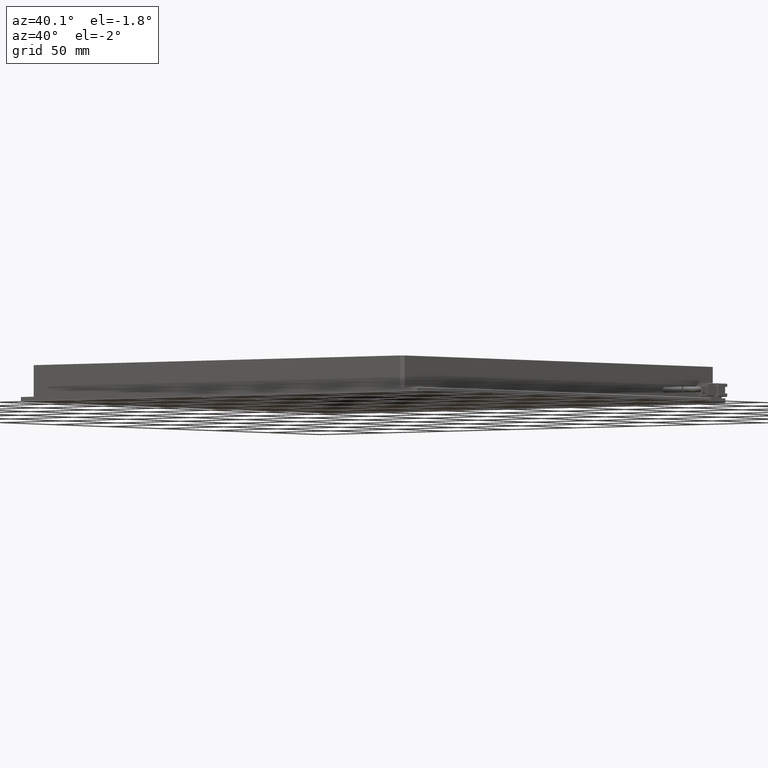
[diagram: clean part render]
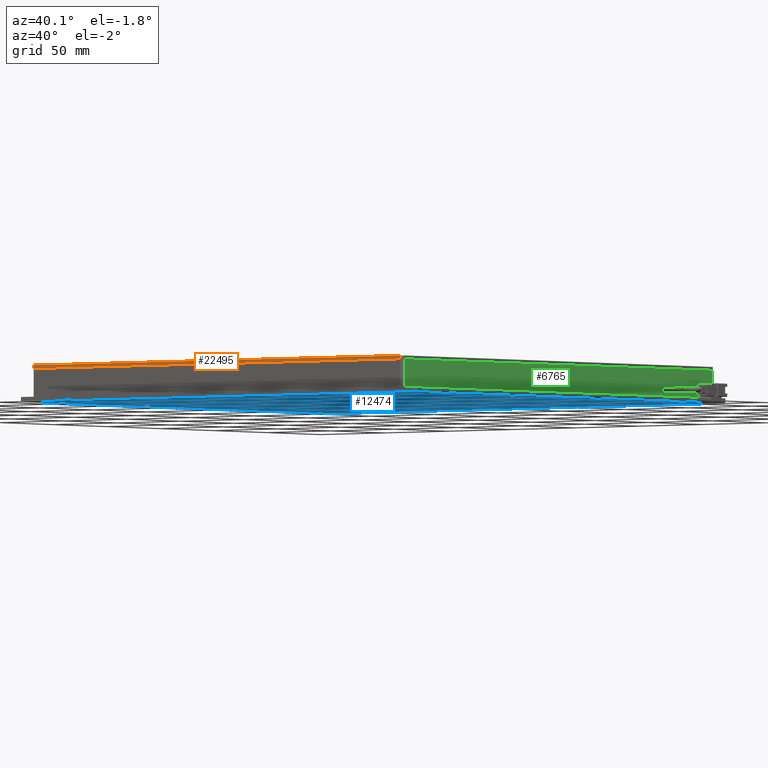
[diagram: same view with three faces highlighted in distinct colors, each labeled with its STEP entity id]
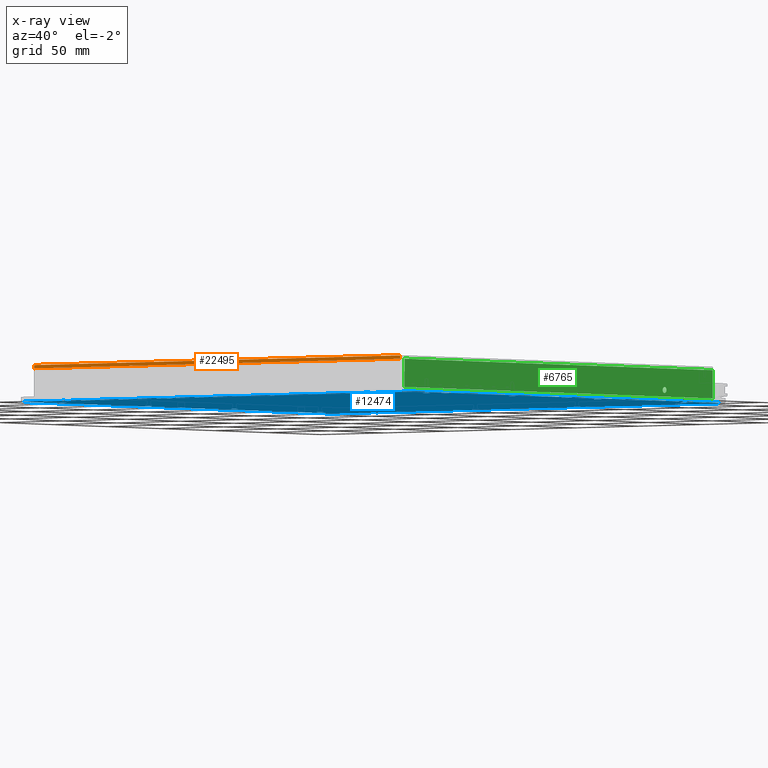
[diagram: x-ray of the same camera — body ghosted, the three highlighted faces saturated]
A machine part, auxiliary view with three faces highlighted in distinct colors.
The next image is the same camera in x-ray (body ghosted, the three faces saturated) — at least one of them is partly hidden behind the body in this view.
Their STEP definitions:

[orange] entity #22495 — the highlighted planar face has unit normal (0, 1, 0).
#531 = EDGE_CURVE ( 'NONE', #22615, #25334, #23700, .T. ) ;
#903 = CARTESIAN_POINT ( 'NONE',  ( -113.0806771263418400, -132.7301954307733900, 10.49999999997180600 ) ) ;
#1914 = DIRECTION ( 'NONE',  ( 0.0000000000000000000, 0.0000000000000000000, 1.000000000000000000 ) ) ;
#3441 = VECTOR ( 'NONE', #22868, 1000.000000000000000 ) ;
#4048 = CARTESIAN_POINT ( 'NONE',  ( 176.9193228736582200, -132.7301954307733600, 10.49999999997180600 ) ) ;
#5483 = LINE ( 'NONE', #16998, #16277 ) ;
#5598 = ORIENTED_EDGE ( 'NONE', *, *, #20519, .F. ) ;
#8034 = DIRECTION ( 'NONE',  ( 1.000000000000000000, 0.0000000000000000000, 0.0000000000000000000 ) ) ;
#8083 = FACE_OUTER_BOUND ( 'NONE', #13329, .T. ) ;
#8745 = CARTESIAN_POINT ( 'NONE',  ( -113.0806771263418400, -132.7301954307733900, 8.499999999971805700 ) ) ;
#9815 = DIRECTION ( 'NONE',  ( 0.0000000000000000000, 1.000000000000000000, 0.0000000000000000000 ) ) ;
#10085 = CARTESIAN_POINT ( 'NONE',  ( -111.0806771263419000, -132.7301954307733900, 10.49999999997180600 ) ) ;
#11156 = CARTESIAN_POINT ( 'NONE',  ( -111.0806771263419000, -132.7301954307733900, 10.49999999997180600 ) ) ;
#12084 = LINE ( 'NONE', #903, #22428 ) ;
#13317 = EDGE_CURVE ( 'NONE', #25334, #21694, #5483, .T. ) ;
#13329 = EDGE_LOOP ( 'NONE', ( #5598, #17652, #20031, #24029 ) ) ;
#14930 = LINE ( 'NONE', #10085, #3441 ) ;
#15120 = VERTEX_POINT ( 'NONE', #11156 ) ;
#15701 = CARTESIAN_POINT ( 'NONE',  ( 176.9193228736581600, -132.7301954307733900, 8.499999999971805700 ) ) ;
#16277 = VECTOR ( 'NONE', #1914, 1000.000000000000000 ) ;
#16998 = CARTESIAN_POINT ( 'NONE',  ( 176.9193228736581900, -132.7301954307733600, 10.49999999997180600 ) ) ;
#17652 = ORIENTED_EDGE ( 'NONE', *, *, #26177, .F. ) ;
#18135 = VECTOR ( 'NONE', #8034, 1000.000000000000000 ) ;
#18805 = CARTESIAN_POINT ( 'NONE',  ( -111.0806771263419000, -132.7301954307733900, 8.499999999971805700 ) ) ;
#18988 = AXIS2_PLACEMENT_3D ( 'NONE', #22618, #9815, #24796 ) ;
#20031 = ORIENTED_EDGE ( 'NONE', *, *, #531, .T. ) ;
#20519 = EDGE_CURVE ( 'NONE', #15120, #21694, #12084, .T. ) ;
#21694 = VERTEX_POINT ( 'NONE', #4048 ) ;
#22428 = VECTOR ( 'NONE', #24401, 1000.000000000000000 ) ;
#22495 = ADVANCED_FACE ( 'NONE', ( #8083 ), #24706, .F. ) ;
#22615 = VERTEX_POINT ( 'NONE', #18805 ) ;
#22618 = CARTESIAN_POINT ( 'NONE',  ( -113.0806771263418400, -132.7301954307733900, 10.49999999997180600 ) ) ;
#22868 = DIRECTION ( 'NONE',  ( 0.0000000000000000000, 0.0000000000000000000, 1.000000000000000000 ) ) ;
#23700 = LINE ( 'NONE', #8745, #18135 ) ;
#24029 = ORIENTED_EDGE ( 'NONE', *, *, #13317, .T. ) ;
#24401 = DIRECTION ( 'NONE',  ( 1.000000000000000000, -0.0000000000000000000, -0.0000000000000000000 ) ) ;
#24706 = PLANE ( 'NONE',  #18988 ) ;
#24796 = DIRECTION ( 'NONE',  ( -1.000000000000000000, 0.0000000000000000000, 0.0000000000000000000 ) ) ;
#25334 = VERTEX_POINT ( 'NONE', #15701 ) ;
#26177 = EDGE_CURVE ( 'NONE', #22615, #15120, #14930, .T. ) ;

[blue] entity #12474 — the highlighted planar face has unit normal (0, 0, -1).
#10 = CARTESIAN_POINT ( 'NONE',  ( -115.8306771263419100, 125.2698045692265900, -11.50000000002819600 ) ) ;
#161 = EDGE_LOOP ( 'NONE', ( #16119, #21674 ) ) ;
#207 = DIRECTION ( 'NONE',  ( 1.000000000000000000, 0.0000000000000000000, 0.0000000000000000000 ) ) ;
#246 = DIRECTION ( 'NONE',  ( -0.0000000000000000000, -0.0000000000000000000, 1.000000000000000000 ) ) ;
#311 = EDGE_CURVE ( 'NONE', #4907, #21697, #19780, .T. ) ;
#340 = CARTESIAN_POINT ( 'NONE',  ( 183.9193228736580700, -98.73019543077344900, -11.50000000002819600 ) ) ;
#341 = CARTESIAN_POINT ( 'NONE',  ( -118.0806771263419100, -98.73019543077346300, -11.50000000002819600 ) ) ;
#439 = VERTEX_POINT ( 'NONE', #10711 ) ;
#451 = CARTESIAN_POINT ( 'NONE',  ( 72.91932287365810300, 156.2698045692266400, -11.50000000002819600 ) ) ;
#456 = VERTEX_POINT ( 'NONE', #11083 ) ;
#490 = FACE_BOUND ( 'NONE', #24988, .T. ) ;
#596 = CARTESIAN_POINT ( 'NONE',  ( 152.9193228736580500, -129.7301954307733600, -11.50000000002819600 ) ) ;
#608 = LINE ( 'NONE', #5112, #11784 ) ;
#620 = VERTEX_POINT ( 'NONE', #3430 ) ;
#644 = CARTESIAN_POINT ( 'NONE',  ( -112.2806771262676100, 133.2698045692266100, -11.50000000014188300 ) ) ;
#708 = VERTEX_POINT ( 'NONE', #15904 ) ;
#715 = EDGE_CURVE ( 'NONE', #21779, #16630, #13030, .T. ) ;
#876 = EDGE_CURVE ( 'NONE', #16831, #708, #20039, .T. ) ;
#980 = CIRCLE ( 'NONE', #19543, 2.249999999999974200 ) ;
#1084 = VECTOR ( 'NONE', #11041, 1000.000000000000000 ) ;
#1093 = VERTEX_POINT ( 'NONE', #6839 ) ;
#1117 = VERTEX_POINT ( 'NONE', #11585 ) ;
#1136 = CARTESIAN_POINT ( 'NONE',  ( 183.9193228736580700, 125.2698045692265400, -11.50000000002819600 ) ) ;
#1176 = DIRECTION ( 'NONE',  ( -1.000000000000000000, 0.0000000000000000000, 0.0000000000000000000 ) ) ;
#1181 = CARTESIAN_POINT ( 'NONE',  ( -7.080677126341916100, 156.2698045692266400, -11.49999999991450900 ) ) ;
#1186 = FACE_BOUND ( 'NONE', #3230, .T. ) ;
#1242 = ORIENTED_EDGE ( 'NONE', *, *, #7397, .T. ) ;
#1336 = VERTEX_POINT ( 'NONE', #18338 ) ;
#1461 = LINE ( 'NONE', #10674, #17318 ) ;
#1473 = AXIS2_PLACEMENT_3D ( 'NONE', #25504, #12748, #27640 ) ;
#1510 = CIRCLE ( 'NONE', #1473, 2.199999999810631200 ) ;
#1517 = EDGE_LOOP ( 'NONE', ( #8460, #18959 ) ) ;
#1611 = CIRCLE ( 'NONE', #9624, 2.199999999901142400 ) ;
#1635 = AXIS2_PLACEMENT_3D ( 'NONE', #3909, #18966, #6086 ) ;
#1644 = CARTESIAN_POINT ( 'NONE',  ( -110.0806771263419100, 133.2698045692266100, -11.50000000014188300 ) ) ;
#1740 = ORIENTED_EDGE ( 'NONE', *, *, #8928, .T. ) ;
#1831 = AXIS2_PLACEMENT_3D ( 'NONE', #7633, #22550, #9758 ) ;
#1865 = CARTESIAN_POINT ( 'NONE',  ( -122.5806771263419400, 157.0626977880401100, -11.50000000002820000 ) ) ;
#1895 = AXIS2_PLACEMENT_3D ( 'NONE', #596, #15667, #2761 ) ;
#1947 = DIRECTION ( 'NONE',  ( -1.000000000000000000, 0.0000000000000000000, -0.0000000000000000000 ) ) ;
#1957 = FACE_BOUND ( 'NONE', #21931, .T. ) ;
#1980 = CARTESIAN_POINT ( 'NONE',  ( -107.8806771264162200, -26.73019543077340300, -11.50000000014188300 ) ) ;
#2002 = CIRCLE ( 'NONE', #22020, 2.199999999901142400 ) ;
#2007 = CARTESIAN_POINT ( 'NONE',  ( 173.7193228738474600, -26.73019543077340300, -11.49999999997135300 ) ) ;
#2022 = DIRECTION ( 'NONE',  ( -1.000000000000000000, 0.0000000000000000000, 0.0000000000000000000 ) ) ;
#2055 = VERTEX_POINT ( 'NONE', #25724 ) ;
#2066 = ORIENTED_EDGE ( 'NONE', *, *, #7541, .T. ) ;
#2105 = DIRECTION ( 'NONE',  ( -0.0000000000000000000, -0.0000000000000000000, 1.000000000000000000 ) ) ;
#2124 = VERTEX_POINT ( 'NONE', #15882 ) ;
#2143 = AXIS2_PLACEMENT_3D ( 'NONE', #8348, #23278, #10480 ) ;
#2288 = CIRCLE ( 'NONE', #26112, 2.249999999999974200 ) ;
#2300 = CARTESIAN_POINT ( 'NONE',  ( 175.9193228736580700, -26.73019543077340300, -11.49999999997135300 ) ) ;
#2322 = EDGE_CURVE ( 'NONE', #14018, #27030, #12557, .T. ) ;
#2434 = AXIS2_PLACEMENT_3D ( 'NONE', #20393, #14985, #25765 ) ;
#2461 = DIRECTION ( 'NONE',  ( -0.0000000000000000000, -0.0000000000000000000, 1.000000000000000000 ) ) ;
#2491 = DIRECTION ( 'NONE',  ( 1.000000000000000000, 0.0000000000000000000, 0.0000000000000000000 ) ) ;
#2506 = EDGE_LOOP ( 'NONE', ( #17229, #20927, #27241, #5425, #15872, #17248, #21594, #10982 ) ) ;
#2553 = ORIENTED_EDGE ( 'NONE', *, *, #8655, .T. ) ;
#2568 = DIRECTION ( 'NONE',  ( -0.0000000000000000000, -0.0000000000000000000, 1.000000000000000000 ) ) ;
#2621 = DIRECTION ( 'NONE',  ( -1.000000000000000000, 0.0000000000000000000, 0.0000000000000000000 ) ) ;
#2625 = FACE_BOUND ( 'NONE', #5860, .T. ) ;
#2761 = DIRECTION ( 'NONE',  ( -1.000000000000000000, 0.0000000000000000000, 0.0000000000000000000 ) ) ;
#2858 = DIRECTION ( 'NONE',  ( -0.0000000000000000000, -0.0000000000000000000, 1.000000000000000000 ) ) ;
#2861 = EDGE_LOOP ( 'NONE', ( #21799, #1242 ) ) ;
#2863 = EDGE_CURVE ( 'NONE', #16442, #20791, #3087, .T. ) ;
#2937 = EDGE_CURVE ( 'NONE', #20755, #25762, #11146, .T. ) ;
#2991 = CARTESIAN_POINT ( 'NONE',  ( -115.8306771263419100, 13.26980456922663400, -11.50000000002819600 ) ) ;
#3053 = DIRECTION ( 'NONE',  ( -0.0000000000000000000, -0.0000000000000000000, 1.000000000000000000 ) ) ;
#3087 = CIRCLE ( 'NONE', #2434, 2.199999999810631200 ) ;
#3161 = VERTEX_POINT ( 'NONE', #16274 ) ;
#3164 = AXIS2_PLACEMENT_3D ( 'NONE', #5355, #20406, #7547 ) ;
#3180 = DIRECTION ( 'NONE',  ( -0.0000000000000000000, -0.0000000000000000000, 1.000000000000000000 ) ) ;
#3230 = EDGE_LOOP ( 'NONE', ( #1740, #2553 ) ) ;
#3308 = DIRECTION ( 'NONE',  ( 1.000000000000000000, 0.0000000000000000000, 0.0000000000000000000 ) ) ;
#3345 = DIRECTION ( 'NONE',  ( -1.000000000000000000, 0.0000000000000000000, 0.0000000000000000000 ) ) ;
#3367 = DIRECTION ( 'NONE',  ( -0.0000000000000000000, -0.0000000000000000000, 1.000000000000000000 ) ) ;
#3386 = AXIS2_PLACEMENT_3D ( 'NONE', #22518, #9723, #24694 ) ;
#3430 = CARTESIAN_POINT ( 'NONE',  ( -112.2806771262676100, -106.7301954307733900, -11.50000000014188300 ) ) ;
#3490 = ORIENTED_EDGE ( 'NONE', *, *, #26193, .T. ) ;
#3543 = EDGE_LOOP ( 'NONE', ( #19124, #19396 ) ) ;
#3547 = VERTEX_POINT ( 'NONE', #10 ) ;
#3601 = CIRCLE ( 'NONE', #20623, 2.249999999999988000 ) ;
#3610 = ORIENTED_EDGE ( 'NONE', *, *, #18371, .T. ) ;
#3796 = DIRECTION ( 'NONE',  ( -1.000000000000000000, 0.0000000000000000000, 0.0000000000000000000 ) ) ;
#3881 = EDGE_LOOP ( 'NONE', ( #4567, #24026 ) ) ;
#3909 = CARTESIAN_POINT ( 'NONE',  ( 175.9193228736580700, -106.7301954307733900, -11.49999999997135300 ) ) ;
#4113 = DIRECTION ( 'NONE',  ( -1.000000000000000000, 0.0000000000000000000, 0.0000000000000000000 ) ) ;
#4147 = VERTEX_POINT ( 'NONE', #25206 ) ;
#4210 = ORIENTED_EDGE ( 'NONE', *, *, #20508, .T. ) ;
#4276 = DIRECTION ( 'NONE',  ( 0.0000000000000000000, 1.000000000000000000, 0.0000000000000000000 ) ) ;
#4309 = ORIENTED_EDGE ( 'NONE', *, *, #26877, .T. ) ;
#4567 = ORIENTED_EDGE ( 'NONE', *, *, #21672, .T. ) ;
#4781 = VERTEX_POINT ( 'NONE', #15204 ) ;
#4907 = VERTEX_POINT ( 'NONE', #6410 ) ;
#4981 = VERTEX_POINT ( 'NONE', #7154 ) ;
#5112 = CARTESIAN_POINT ( 'NONE',  ( 188.4193228736581000, -130.5230886495869000, -11.50000000002819600 ) ) ;
#5144 = ORIENTED_EDGE ( 'NONE', *, *, #2937, .T. ) ;
#5219 = EDGE_CURVE ( 'NONE', #20906, #3161, #13578, .T. ) ;
#5289 = VERTEX_POINT ( 'NONE', #10582 ) ;
#5355 = CARTESIAN_POINT ( 'NONE',  ( 183.9193228736580700, 13.26980456922655100, -11.50000000002819600 ) ) ;
#5399 = DIRECTION ( 'NONE',  ( -0.0000000000000000000, -0.0000000000000000000, 1.000000000000000000 ) ) ;
#5425 = ORIENTED_EDGE ( 'NONE', *, *, #24203, .T. ) ;
#5528 = FACE_BOUND ( 'NONE', #17760, .T. ) ;
#5551 = CARTESIAN_POINT ( 'NONE',  ( 150.7193228736523700, 156.2698045692266400, -11.50000000002819600 ) ) ;
#5661 = CARTESIAN_POINT ( 'NONE',  ( 186.1693228736580700, 13.26980456922655100, -11.50000000002819600 ) ) ;
#5734 = AXIS2_PLACEMENT_3D ( 'NONE', #9696, #24655, #11889 ) ;
#5785 = DIRECTION ( 'NONE',  ( -0.0000000000000000000, -0.0000000000000000000, 1.000000000000000000 ) ) ;
#5805 = VERTEX_POINT ( 'NONE', #14518 ) ;
#5821 = DIRECTION ( 'NONE',  ( -0.7071067811865510100, 0.7071067811865441300, 0.0000000000000000000 ) ) ;
#5860 = EDGE_LOOP ( 'NONE', ( #8761, #15526 ) ) ;
#5887 = VERTEX_POINT ( 'NONE', #9891 ) ;
#5996 = EDGE_CURVE ( 'NONE', #21697, #4907, #16106, .T. ) ;
#6086 = DIRECTION ( 'NONE',  ( -1.000000000000000000, 0.0000000000000000000, 0.0000000000000000000 ) ) ;
#6142 = CIRCLE ( 'NONE', #24878, 2.199999999810631200 ) ;
#6215 = FACE_BOUND ( 'NONE', #24315, .T. ) ;
#6221 = CARTESIAN_POINT ( 'NONE',  ( 75.11932287364791700, -129.7301954307733600, -11.50000000002819600 ) ) ;
#6243 = EDGE_LOOP ( 'NONE', ( #4309, #7692 ) ) ;
#6248 = AXIS2_PLACEMENT_3D ( 'NONE', #23925, #11145, #26115 ) ;
#6290 = EDGE_CURVE ( 'NONE', #23019, #11653, #7650, .T. ) ;
#6340 = CIRCLE ( 'NONE', #26318, 2.199999999917046100 ) ;
#6410 = CARTESIAN_POINT ( 'NONE',  ( 70.71932287366827600, -129.7301954307733600, -11.50000000002819600 ) ) ;
#6517 = AXIS2_PLACEMENT_3D ( 'NONE', #13895, #13689, #13496 ) ;
#6550 = AXIS2_PLACEMENT_3D ( 'NONE', #9104, #24044, #11255 ) ;
#6572 = VECTOR ( 'NONE', #12785, 1000.000000000000000 ) ;
#6682 = CIRCLE ( 'NONE', #26166, 2.199999999917046100 ) ;
#6839 = CARTESIAN_POINT ( 'NONE',  ( 188.4193228736581000, -130.5230886495869000, -11.50000000002819600 ) ) ;
#6844 = EDGE_CURVE ( 'NONE', #20791, #16442, #14552, .T. ) ;
#6891 = FACE_BOUND ( 'NONE', #24648, .T. ) ;
#6914 = EDGE_LOOP ( 'NONE', ( #14289, #13972 ) ) ;
#6984 = AXIS2_PLACEMENT_3D ( 'NONE', #1644, #16712, #3796 ) ;
#6986 = CARTESIAN_POINT ( 'NONE',  ( 186.1693228736580700, -98.73019543077344900, -11.50000000002819600 ) ) ;
#7101 = LINE ( 'NONE', #23283, #12850 ) ;
#7154 = CARTESIAN_POINT ( 'NONE',  ( 186.7122160924718100, -132.2301954307733600, -11.50000000002816200 ) ) ;
#7397 = EDGE_CURVE ( 'NONE', #3161, #20906, #980, .T. ) ;
#7413 = AXIS2_PLACEMENT_3D ( 'NONE', #15774, #2858, #17964 ) ;
#7474 = ORIENTED_EDGE ( 'NONE', *, *, #2863, .T. ) ;
#7497 = VERTEX_POINT ( 'NONE', #20188 ) ;
#7541 = EDGE_CURVE ( 'NONE', #21566, #5805, #2288, .T. ) ;
#7547 = DIRECTION ( 'NONE',  ( 1.000000000000000000, 0.0000000000000000000, 0.0000000000000000000 ) ) ;
#7633 = CARTESIAN_POINT ( 'NONE',  ( 183.9193228736580700, 125.2698045692265400, -11.50000000002819600 ) ) ;
#7650 = CIRCLE ( 'NONE', #23175, 2.249999999999988000 ) ;
#7677 = DIRECTION ( 'NONE',  ( -0.0000000000000000000, -0.0000000000000000000, 1.000000000000000000 ) ) ;
#7690 = FACE_BOUND ( 'NONE', #1517, .T. ) ;
#7692 = ORIENTED_EDGE ( 'NONE', *, *, #7953, .T. ) ;
#7869 = CARTESIAN_POINT ( 'NONE',  ( -122.5806771263419100, -130.5230886495868700, -11.50000000002818200 ) ) ;
#7944 = DIRECTION ( 'NONE',  ( -0.0000000000000000000, -0.0000000000000000000, 1.000000000000000000 ) ) ;
#7953 = EDGE_CURVE ( 'NONE', #23735, #1336, #1611, .T. ) ;
#8062 = VERTEX_POINT ( 'NONE', #7869 ) ;
#8105 = EDGE_CURVE ( 'NONE', #16699, #16857, #3601, .T. ) ;
#8115 = ORIENTED_EDGE ( 'NONE', *, *, #26039, .T. ) ;
#8238 = CARTESIAN_POINT ( 'NONE',  ( -118.0806771263419100, 13.26980456922663400, -11.50000000002819600 ) ) ;
#8261 = VERTEX_POINT ( 'NONE', #17392 ) ;
#8348 = CARTESIAN_POINT ( 'NONE',  ( 72.91932287365810300, 156.2698045692266400, -11.50000000002819600 ) ) ;
#8460 = ORIENTED_EDGE ( 'NONE', *, *, #26041, .T. ) ;
#8499 = AXIS2_PLACEMENT_3D ( 'NONE', #23952, #11173, #26140 ) ;
#8539 = VERTEX_POINT ( 'NONE', #5551 ) ;
#8614 = EDGE_CURVE ( 'NONE', #17422, #620, #19014, .T. ) ;
#8655 = EDGE_CURVE ( 'NONE', #20415, #439, #16328, .T. ) ;
#8761 = ORIENTED_EDGE ( 'NONE', *, *, #17156, .T. ) ;
#8867 = CIRCLE ( 'NONE', #7413, 2.200000000005697400 ) ;
#8928 = EDGE_CURVE ( 'NONE', #439, #20415, #11552, .T. ) ;
#8940 = CIRCLE ( 'NONE', #3164, 2.249999999999974200 ) ;
#9101 = CARTESIAN_POINT ( 'NONE',  ( -110.0806771263419100, -26.73019543077340300, -11.50000000014188300 ) ) ;
#9104 = CARTESIAN_POINT ( 'NONE',  ( -110.0806771263419100, -106.7301954307733900, -11.50000000014188300 ) ) ;
#9172 = CIRCLE ( 'NONE', #27459, 2.200000000005697400 ) ;
#9177 = EDGE_CURVE ( 'NONE', #22401, #8261, #11516, .T. ) ;
#9272 = EDGE_LOOP ( 'NONE', ( #16430, #16329 ) ) ;
#9273 = EDGE_CURVE ( 'NONE', #4781, #1117, #6142, .T. ) ;
#9395 = VERTEX_POINT ( 'NONE', #19160 ) ;
#9624 = AXIS2_PLACEMENT_3D ( 'NONE', #18339, #5399, #20459 ) ;
#9657 = CARTESIAN_POINT ( 'NONE',  ( -107.8806771264162200, 53.26980456922658600, -11.50000000014188300 ) ) ;
#9696 = CARTESIAN_POINT ( 'NONE',  ( -118.0806771263419100, 125.2698045692265900, -11.50000000002819600 ) ) ;
#9723 = DIRECTION ( 'NONE',  ( -0.0000000000000000000, -0.0000000000000000000, 1.000000000000000000 ) ) ;
#9758 = DIRECTION ( 'NONE',  ( 1.000000000000000000, 0.0000000000000000000, 0.0000000000000000000 ) ) ;
#9796 = CIRCLE ( 'NONE', #6984, 2.199999999925692100 ) ;
#9891 = CARTESIAN_POINT ( 'NONE',  ( -9.280677126258963100, -129.7301954307733600, -11.49999999991450900 ) ) ;
#9913 = EDGE_LOOP ( 'NONE', ( #15370, #4210 ) ) ;
#9956 = AXIS2_PLACEMENT_3D ( 'NONE', #451, #15529, #2621 ) ;
#10044 = CARTESIAN_POINT ( 'NONE',  ( 175.9193228736580700, 53.26980456922658600, -11.49999999997135300 ) ) ;
#10376 = DIRECTION ( 'NONE',  ( 1.000000000000000000, 0.0000000000000000000, 0.0000000000000000000 ) ) ;
#10480 = DIRECTION ( 'NONE',  ( -1.000000000000000000, 0.0000000000000000000, 0.0000000000000000000 ) ) ;
#10570 = EDGE_LOOP ( 'NONE', ( #15733, #17902 ) ) ;
#10582 = CARTESIAN_POINT ( 'NONE',  ( 155.1193228736637500, 156.2698045692266400, -11.50000000002819600 ) ) ;
#10643 = CARTESIAN_POINT ( 'NONE',  ( -9.280677126258963100, 156.2698045692266400, -11.49999999991450900 ) ) ;
#10674 = CARTESIAN_POINT ( 'NONE',  ( -122.5806771263419300, 159.2698045692266400, -11.50000000002819600 ) ) ;
#10686 = DIRECTION ( 'NONE',  ( -1.000000000000000000, 0.0000000000000000000, 0.0000000000000000000 ) ) ;
#10711 = CARTESIAN_POINT ( 'NONE',  ( 173.7193228738474600, 53.26980456922658600, -11.49999999997135300 ) ) ;
#10786 = EDGE_CURVE ( 'NONE', #4147, #2124, #25622, .T. ) ;
#10792 = CARTESIAN_POINT ( 'NONE',  ( 175.9193228736580700, 133.2698045692266100, -11.49999999997135300 ) ) ;
#10917 = CARTESIAN_POINT ( 'NONE',  ( 75.11932287364791700, 156.2698045692266400, -11.50000000002819600 ) ) ;
#10945 = CARTESIAN_POINT ( 'NONE',  ( -123.0806771263419100, 158.7698045692266400, -11.50000000002819600 ) ) ;
#10982 = ORIENTED_EDGE ( 'NONE', *, *, #23698, .T. ) ;
#11041 = DIRECTION ( 'NONE',  ( 1.000000000000000000, -0.0000000000000000000, 0.0000000000000000000 ) ) ;
#11071 = CARTESIAN_POINT ( 'NONE',  ( 175.9193228736580700, 53.26980456922658600, -11.49999999997135300 ) ) ;
#11083 = CARTESIAN_POINT ( 'NONE',  ( -112.2806771262676100, 53.26980456922658600, -11.50000000014188300 ) ) ;
#11089 = AXIS2_PLACEMENT_3D ( 'NONE', #12712, #13346, #13253 ) ;
#11145 = DIRECTION ( 'NONE',  ( -0.0000000000000000000, -0.0000000000000000000, 1.000000000000000000 ) ) ;
#11146 = CIRCLE ( 'NONE', #11089, 2.200000000005697400 ) ;
#11169 = DIRECTION ( 'NONE',  ( 1.000000000000000000, 0.0000000000000000000, 0.0000000000000000000 ) ) ;
#11172 = EDGE_CURVE ( 'NONE', #1117, #4781, #14638, .T. ) ;
#11173 = DIRECTION ( 'NONE',  ( -0.0000000000000000000, -0.0000000000000000000, 1.000000000000000000 ) ) ;
#11206 = EDGE_CURVE ( 'NONE', #8539, #5289, #8867, .T. ) ;
#11246 = FACE_BOUND ( 'NONE', #9272, .T. ) ;
#11250 = DIRECTION ( 'NONE',  ( -1.000000000000000000, 0.0000000000000000000, 0.0000000000000000000 ) ) ;
#11255 = DIRECTION ( 'NONE',  ( -1.000000000000000000, 0.0000000000000000000, 0.0000000000000000000 ) ) ;
#11330 = EDGE_CURVE ( 'NONE', #5289, #8539, #9172, .T. ) ;
#11449 = DIRECTION ( 'NONE',  ( -0.0000000000000000000, -0.0000000000000000000, 1.000000000000000000 ) ) ;
#11516 = CIRCLE ( 'NONE', #3386, 2.199999999901142400 ) ;
#11552 = CIRCLE ( 'NONE', #21656, 2.199999999810631200 ) ;
#11574 = CIRCLE ( 'NONE', #12033, 2.249999999999988000 ) ;
#11585 = CARTESIAN_POINT ( 'NONE',  ( 173.7193228738474600, -106.7301954307733900, -11.49999999997135300 ) ) ;
#11637 = EDGE_LOOP ( 'NONE', ( #22649, #16666 ) ) ;
#11653 = VERTEX_POINT ( 'NONE', #19409 ) ;
#11698 = CARTESIAN_POINT ( 'NONE',  ( -87.08067712634191100, -129.7301954307733600, -11.50000000002819600 ) ) ;
#11760 = CARTESIAN_POINT ( 'NONE',  ( 183.9193228736580700, -98.73019543077344900, -11.50000000002819600 ) ) ;
#11784 = VECTOR ( 'NONE', #20172, 1000.000000000000000 ) ;
#11826 = CARTESIAN_POINT ( 'NONE',  ( -107.8806771264162200, -106.7301954307733900, -11.50000000014188300 ) ) ;
#11862 = EDGE_CURVE ( 'NONE', #18202, #25954, #16884, .T. ) ;
#11880 = EDGE_CURVE ( 'NONE', #25954, #18202, #22463, .T. ) ;
#11889 = DIRECTION ( 'NONE',  ( 1.000000000000000000, 0.0000000000000000000, 0.0000000000000000000 ) ) ;
#11939 = CARTESIAN_POINT ( 'NONE',  ( -123.0806771263419100, 159.2698045692266400, -11.50000000002819600 ) ) ;
#11956 = FACE_BOUND ( 'NONE', #11637, .T. ) ;
#12010 = LINE ( 'NONE', #20920, #22930 ) ;
#12033 = AXIS2_PLACEMENT_3D ( 'NONE', #16252, #3367, #18437 ) ;
#12235 = DIRECTION ( 'NONE',  ( -1.000000000000000000, 0.0000000000000000000, 0.0000000000000000000 ) ) ;
#12257 = CARTESIAN_POINT ( 'NONE',  ( 186.7122160924719500, 158.7698045692266400, -11.50000000002817800 ) ) ;
#12302 = LINE ( 'NONE', #21241, #6572 ) ;
#12305 = EDGE_LOOP ( 'NONE', ( #8115, #18755 ) ) ;
#12339 = DIRECTION ( 'NONE',  ( -0.0000000000000000000, -0.0000000000000000000, 1.000000000000000000 ) ) ;
#12357 = DIRECTION ( 'NONE',  ( -0.0000000000000000000, -0.0000000000000000000, 1.000000000000000000 ) ) ;
#12474 = ADVANCED_FACE ( 'NONE', ( #13414, #14120, #2625, #19136, #7690, #1957, #24054, #23935, #18373, #12643, #6891, #1186, #23270, #17709, #11956, #6215, #490, #22592, #17020, #11246, #5528, #27633, #21912 ), #16175, .T. ) ;
#12557 = LINE ( 'NONE', #10945, #1084 ) ;
#12618 = ORIENTED_EDGE ( 'NONE', *, *, #23559, .T. ) ;
#12643 = FACE_BOUND ( 'NONE', #6914, .T. ) ;
#12712 = CARTESIAN_POINT ( 'NONE',  ( 152.9193228736580500, -129.7301954307733600, -11.50000000002819600 ) ) ;
#12723 = CARTESIAN_POINT ( 'NONE',  ( -120.8735703451553900, -132.2301954307733900, -11.50000000002818900 ) ) ;
#12748 = DIRECTION ( 'NONE',  ( -0.0000000000000000000, -0.0000000000000000000, 1.000000000000000000 ) ) ;
#12765 = CARTESIAN_POINT ( 'NONE',  ( 155.1193228736637500, -129.7301954307733600, -11.50000000002819600 ) ) ;
#12785 = DIRECTION ( 'NONE',  ( 0.7071067811865428000, 0.7071067811865522400, 0.0000000000000000000 ) ) ;
#12834 = EDGE_CURVE ( 'NONE', #11653, #23019, #19641, .T. ) ;
#12850 = VECTOR ( 'NONE', #19269, 1000.000000000000000 ) ;
#12984 = DIRECTION ( 'NONE',  ( -1.000000000000000000, 0.0000000000000000000, 0.0000000000000000000 ) ) ;
#13030 = CIRCLE ( 'NONE', #18981, 2.199999999925692100 ) ;
#13222 = CIRCLE ( 'NONE', #17658, 2.199999999917046100 ) ;
#13253 = DIRECTION ( 'NONE',  ( -1.000000000000000000, 0.0000000000000000000, 0.0000000000000000000 ) ) ;
#13260 = DIRECTION ( 'NONE',  ( -1.000000000000000000, 0.0000000000000000000, 0.0000000000000000000 ) ) ;
#13346 = DIRECTION ( 'NONE',  ( -0.0000000000000000000, -0.0000000000000000000, 1.000000000000000000 ) ) ;
#13414 = FACE_OUTER_BOUND ( 'NONE', #2506, .T. ) ;
#13435 = CARTESIAN_POINT ( 'NONE',  ( 178.1193228734687200, 53.26980456922658600, -11.49999999997135300 ) ) ;
#13464 = VERTEX_POINT ( 'NONE', #10917 ) ;
#13496 = DIRECTION ( 'NONE',  ( -1.000000000000000000, 0.0000000000000000000, 0.0000000000000000000 ) ) ;
#13578 = CIRCLE ( 'NONE', #20350, 2.249999999999974200 ) ;
#13689 = DIRECTION ( 'NONE',  ( -0.0000000000000000000, -0.0000000000000000000, 1.000000000000000000 ) ) ;
#13888 = DIRECTION ( 'NONE',  ( -1.000000000000000000, 0.0000000000000000000, 0.0000000000000000000 ) ) ;
#13895 = CARTESIAN_POINT ( 'NONE',  ( 72.91932287365810300, -129.7301954307733600, -11.50000000002819600 ) ) ;
#13972 = ORIENTED_EDGE ( 'NONE', *, *, #9273, .T. ) ;
#14018 = VERTEX_POINT ( 'NONE', #21807 ) ;
#14099 = DIRECTION ( 'NONE',  ( -0.0000000000000000000, -0.0000000000000000000, 1.000000000000000000 ) ) ;
#14120 = FACE_BOUND ( 'NONE', #10570, .T. ) ;
#14144 = DIRECTION ( 'NONE',  ( -1.000000000000000000, 0.0000000000000000000, -0.0000000000000000000 ) ) ;
#14225 = AXIS2_PLACEMENT_3D ( 'NONE', #25111, #12357, #4113 ) ;
#14289 = ORIENTED_EDGE ( 'NONE', *, *, #11172, .T. ) ;
#14297 = EDGE_CURVE ( 'NONE', #18528, #456, #16499, .T. ) ;
#14451 = EDGE_CURVE ( 'NONE', #13464, #2055, #22742, .T. ) ;
#14464 = VECTOR ( 'NONE', #1947, 1000.000000000000000 ) ;
#14518 = CARTESIAN_POINT ( 'NONE',  ( 181.6693228736581000, 13.26980456922655100, -11.50000000002819600 ) ) ;
#14552 = CIRCLE ( 'NONE', #21093, 2.199999999810631200 ) ;
#14638 = CIRCLE ( 'NONE', #1635, 2.199999999810631200 ) ;
#14878 = EDGE_CURVE ( 'NONE', #4981, #25132, #19474, .T. ) ;
#14985 = DIRECTION ( 'NONE',  ( -0.0000000000000000000, -0.0000000000000000000, 1.000000000000000000 ) ) ;
#15039 = ORIENTED_EDGE ( 'NONE', *, *, #11880, .T. ) ;
#15133 = EDGE_CURVE ( 'NONE', #16630, #21779, #21379, .T. ) ;
#15204 = CARTESIAN_POINT ( 'NONE',  ( 178.1193228734687200, -106.7301954307733900, -11.49999999997135300 ) ) ;
#15319 = CARTESIAN_POINT ( 'NONE',  ( 150.7193228736523700, -129.7301954307733600, -11.50000000002819600 ) ) ;
#15370 = ORIENTED_EDGE ( 'NONE', *, *, #20850, .T. ) ;
#15399 = CARTESIAN_POINT ( 'NONE',  ( -7.080677126341916100, -129.7301954307733600, -11.49999999991450900 ) ) ;
#15425 = DIRECTION ( 'NONE',  ( -0.0000000000000000000, -0.0000000000000000000, 1.000000000000000000 ) ) ;
#15526 = ORIENTED_EDGE ( 'NONE', *, *, #14451, .T. ) ;
#15529 = DIRECTION ( 'NONE',  ( -0.0000000000000000000, -0.0000000000000000000, 1.000000000000000000 ) ) ;
#15667 = DIRECTION ( 'NONE',  ( -0.0000000000000000000, -0.0000000000000000000, 1.000000000000000000 ) ) ;
#15707 = EDGE_LOOP ( 'NONE', ( #19140, #3610 ) ) ;
#15731 = ORIENTED_EDGE ( 'NONE', *, *, #11862, .T. ) ;
#15733 = ORIENTED_EDGE ( 'NONE', *, *, #11206, .T. ) ;
#15774 = CARTESIAN_POINT ( 'NONE',  ( 152.9193228736580500, 156.2698045692266400, -11.50000000002819600 ) ) ;
#15785 = EDGE_CURVE ( 'NONE', #25762, #20755, #22957, .T. ) ;
#15872 = ORIENTED_EDGE ( 'NONE', *, *, #18766, .T. ) ;
#15882 = CARTESIAN_POINT ( 'NONE',  ( 173.7193228738474600, 133.2698045692266100, -11.49999999997135300 ) ) ;
#15904 = CARTESIAN_POINT ( 'NONE',  ( -107.8806771264162200, 133.2698045692266100, -11.50000000014188300 ) ) ;
#15966 = CARTESIAN_POINT ( 'NONE',  ( -7.080677126341916100, -129.7301954307733600, -11.49999999991450900 ) ) ;
#16089 = CARTESIAN_POINT ( 'NONE',  ( 183.9193228736580700, 13.26980456922655100, -11.50000000002819600 ) ) ;
#16106 = CIRCLE ( 'NONE', #6517, 2.199999999989821200 ) ;
#16119 = ORIENTED_EDGE ( 'NONE', *, *, #25517, .T. ) ;
#16175 = PLANE ( 'NONE',  #22642 ) ;
#16200 = DIRECTION ( 'NONE',  ( -0.0000000000000000000, -0.0000000000000000000, 1.000000000000000000 ) ) ;
#16234 = DIRECTION ( 'NONE',  ( -0.0000000000000000000, -0.0000000000000000000, 1.000000000000000000 ) ) ;
#16252 = CARTESIAN_POINT ( 'NONE',  ( -118.0806771263419100, 13.26980456922663400, -11.50000000002819600 ) ) ;
#16274 = CARTESIAN_POINT ( 'NONE',  ( 181.6693228736581000, -98.73019543077344900, -11.50000000002819600 ) ) ;
#16320 = CARTESIAN_POINT ( 'NONE',  ( -115.8306771263419100, -98.73019543077346300, -11.50000000002819600 ) ) ;
#16328 = CIRCLE ( 'NONE', #22708, 2.199999999810631200 ) ;
#16329 = ORIENTED_EDGE ( 'NONE', *, *, #12834, .T. ) ;
#16430 = ORIENTED_EDGE ( 'NONE', *, *, #6290, .T. ) ;
#16442 = VERTEX_POINT ( 'NONE', #20595 ) ;
#16499 = CIRCLE ( 'NONE', #23903, 2.199999999925692100 ) ;
#16527 = CARTESIAN_POINT ( 'NONE',  ( -110.0806771263419100, -26.73019543077340300, -11.50000000014188300 ) ) ;
#16558 = DIRECTION ( 'NONE',  ( -0.0000000000000000000, -0.0000000000000000000, 1.000000000000000000 ) ) ;
#16630 = VERTEX_POINT ( 'NONE', #1980 ) ;
#16666 = ORIENTED_EDGE ( 'NONE', *, *, #15133, .T. ) ;
#16687 = CARTESIAN_POINT ( 'NONE',  ( -4.880677126424870900, -129.7301954307733600, -11.49999999991450900 ) ) ;
#16699 = VERTEX_POINT ( 'NONE', #19651 ) ;
#16712 = DIRECTION ( 'NONE',  ( -0.0000000000000000000, -0.0000000000000000000, 1.000000000000000000 ) ) ;
#16789 = CARTESIAN_POINT ( 'NONE',  ( 186.1693228736580700, 125.2698045692265400, -11.50000000002819600 ) ) ;
#16831 = VERTEX_POINT ( 'NONE', #644 ) ;
#16857 = VERTEX_POINT ( 'NONE', #2991 ) ;
#16871 = CIRCLE ( 'NONE', #6550, 2.199999999925692100 ) ;
#16884 = CIRCLE ( 'NONE', #26772, 2.249999999999974200 ) ;
#17020 = FACE_BOUND ( 'NONE', #161, .T. ) ;
#17156 = EDGE_CURVE ( 'NONE', #2055, #13464, #22287, .T. ) ;
#17213 = AXIS2_PLACEMENT_3D ( 'NONE', #25026, #25293, #25410 ) ;
#17229 = ORIENTED_EDGE ( 'NONE', *, *, #25677, .T. ) ;
#17248 = ORIENTED_EDGE ( 'NONE', *, *, #20495, .T. ) ;
#17318 = VECTOR ( 'NONE', #4276, 1000.000000000000000 ) ;
#17325 = ORIENTED_EDGE ( 'NONE', *, *, #15785, .T. ) ;
#17392 = CARTESIAN_POINT ( 'NONE',  ( -89.28067712624304900, 156.2698045692266400, -11.50000000002819600 ) ) ;
#17422 = VERTEX_POINT ( 'NONE', #11826 ) ;
#17452 = ORIENTED_EDGE ( 'NONE', *, *, #20363, .T. ) ;
#17522 = CIRCLE ( 'NONE', #6248, 2.199999999925692100 ) ;
#17533 = ORIENTED_EDGE ( 'NONE', *, *, #14297, .T. ) ;
#17577 = DIRECTION ( 'NONE',  ( -1.000000000000000000, 0.0000000000000000000, 0.0000000000000000000 ) ) ;
#17658 = AXIS2_PLACEMENT_3D ( 'NONE', #1181, #16234, #3345 ) ;
#17709 = FACE_BOUND ( 'NONE', #22297, .T. ) ;
#17760 = EDGE_LOOP ( 'NONE', ( #15731, #15039 ) ) ;
#17902 = ORIENTED_EDGE ( 'NONE', *, *, #11330, .T. ) ;
#17904 = CARTESIAN_POINT ( 'NONE',  ( -84.88067712644075900, 156.2698045692266400, -11.50000000002819600 ) ) ;
#17964 = DIRECTION ( 'NONE',  ( -1.000000000000000000, 0.0000000000000000000, 0.0000000000000000000 ) ) ;
#18168 = DIRECTION ( 'NONE',  ( -1.000000000000000000, 0.0000000000000000000, 0.0000000000000000000 ) ) ;
#18179 = VERTEX_POINT ( 'NONE', #16687 ) ;
#18202 = VERTEX_POINT ( 'NONE', #16789 ) ;
#18273 = DIRECTION ( 'NONE',  ( 1.000000000000000000, 0.0000000000000000000, 0.0000000000000000000 ) ) ;
#18338 = CARTESIAN_POINT ( 'NONE',  ( -89.28067712624304900, -129.7301954307733600, -11.50000000002819600 ) ) ;
#18339 = CARTESIAN_POINT ( 'NONE',  ( -87.08067712634191100, -129.7301954307733600, -11.50000000002819600 ) ) ;
#18371 = EDGE_CURVE ( 'NONE', #7497, #3547, #19573, .T. ) ;
#18373 = FACE_BOUND ( 'NONE', #6243, .T. ) ;
#18437 = DIRECTION ( 'NONE',  ( 1.000000000000000000, 0.0000000000000000000, 0.0000000000000000000 ) ) ;
#18497 = AXIS2_PLACEMENT_3D ( 'NONE', #9101, #24042, #11250 ) ;
#18528 = VERTEX_POINT ( 'NONE', #9657 ) ;
#18696 = CARTESIAN_POINT ( 'NONE',  ( 175.9193228736580700, -106.7301954307733900, -11.49999999997135300 ) ) ;
#18755 = ORIENTED_EDGE ( 'NONE', *, *, #24556, .T. ) ;
#18766 = EDGE_CURVE ( 'NONE', #22733, #1093, #7101, .T. ) ;
#18927 = CIRCLE ( 'NONE', #19066, 2.199999999901142400 ) ;
#18959 = ORIENTED_EDGE ( 'NONE', *, *, #9177, .T. ) ;
#18966 = DIRECTION ( 'NONE',  ( -0.0000000000000000000, -0.0000000000000000000, 1.000000000000000000 ) ) ;
#18981 = AXIS2_PLACEMENT_3D ( 'NONE', #16527, #16558, #10686 ) ;
#19014 = CIRCLE ( 'NONE', #14225, 2.199999999925692100 ) ;
#19066 = AXIS2_PLACEMENT_3D ( 'NONE', #20535, #7677, #22589 ) ;
#19124 = ORIENTED_EDGE ( 'NONE', *, *, #311, .T. ) ;
#19136 = FACE_BOUND ( 'NONE', #12305, .T. ) ;
#19140 = ORIENTED_EDGE ( 'NONE', *, *, #26919, .T. ) ;
#19160 = CARTESIAN_POINT ( 'NONE',  ( -4.880677126424870900, 156.2698045692266400, -11.49999999991450900 ) ) ;
#19269 = DIRECTION ( 'NONE',  ( -0.0000000000000000000, -1.000000000000000000, -0.0000000000000000000 ) ) ;
#19396 = ORIENTED_EDGE ( 'NONE', *, *, #5996, .T. ) ;
#19409 = CARTESIAN_POINT ( 'NONE',  ( -120.3306771263419000, -98.73019543077346300, -11.50000000002819600 ) ) ;
#19474 = LINE ( 'NONE', #27585, #14464 ) ;
#19543 = AXIS2_PLACEMENT_3D ( 'NONE', #340, #246, #207 ) ;
#19573 = CIRCLE ( 'NONE', #8499, 2.249999999999988000 ) ;
#19641 = CIRCLE ( 'NONE', #24464, 2.249999999999988000 ) ;
#19651 = CARTESIAN_POINT ( 'NONE',  ( -120.3306771263419000, 13.26980456922663400, -11.50000000002819600 ) ) ;
#19780 = CIRCLE ( 'NONE', #17213, 2.199999999989821200 ) ;
#20039 = CIRCLE ( 'NONE', #21260, 2.199999999925692100 ) ;
#20172 = DIRECTION ( 'NONE',  ( -0.7071067811865130400, -0.7071067811865819900, 0.0000000000000000000 ) ) ;
#20188 = CARTESIAN_POINT ( 'NONE',  ( -120.3306771263419000, 125.2698045692265900, -11.50000000002819600 ) ) ;
#20310 = ORIENTED_EDGE ( 'NONE', *, *, #6844, .T. ) ;
#20350 = AXIS2_PLACEMENT_3D ( 'NONE', #11760, #11449, #11169 ) ;
#20363 = EDGE_CURVE ( 'NONE', #456, #18528, #17522, .T. ) ;
#20393 = CARTESIAN_POINT ( 'NONE',  ( 175.9193228736580700, -26.73019543077340300, -11.49999999997135300 ) ) ;
#20406 = DIRECTION ( 'NONE',  ( -0.0000000000000000000, -0.0000000000000000000, 1.000000000000000000 ) ) ;
#20415 = VERTEX_POINT ( 'NONE', #13435 ) ;
#20459 = DIRECTION ( 'NONE',  ( -1.000000000000000000, 0.0000000000000000000, 0.0000000000000000000 ) ) ;
#20495 = EDGE_CURVE ( 'NONE', #1093, #4981, #608, .T. ) ;
#20508 = EDGE_CURVE ( 'NONE', #18179, #5887, #6340, .T. ) ;
#20535 = CARTESIAN_POINT ( 'NONE',  ( -87.08067712634191100, 156.2698045692266400, -11.50000000002819600 ) ) ;
#20595 = CARTESIAN_POINT ( 'NONE',  ( 178.1193228734687200, -26.73019543077340300, -11.49999999997135300 ) ) ;
#20623 = AXIS2_PLACEMENT_3D ( 'NONE', #8238, #23172, #10376 ) ;
#20755 = VERTEX_POINT ( 'NONE', #12765 ) ;
#20782 = CARTESIAN_POINT ( 'NONE',  ( -7.080677126341916100, 156.2698045692266400, -11.49999999991450900 ) ) ;
#20791 = VERTEX_POINT ( 'NONE', #2007 ) ;
#20807 = DIRECTION ( 'NONE',  ( -1.000000000000000000, 0.0000000000000000000, 0.0000000000000000000 ) ) ;
#20850 = EDGE_CURVE ( 'NONE', #5887, #18179, #6682, .T. ) ;
#20906 = VERTEX_POINT ( 'NONE', #6986 ) ;
#20920 = CARTESIAN_POINT ( 'NONE',  ( -120.8735703451553900, -132.2301954307733600, -11.50000000002819600 ) ) ;
#20927 = ORIENTED_EDGE ( 'NONE', *, *, #24053, .T. ) ;
#21093 = AXIS2_PLACEMENT_3D ( 'NONE', #2300, #2105, #2022 ) ;
#21241 = CARTESIAN_POINT ( 'NONE',  ( -122.5806771263419400, 157.0626977880401100, -11.50000000002819600 ) ) ;
#21260 = AXIS2_PLACEMENT_3D ( 'NONE', #25930, #2568, #26192 ) ;
#21379 = CIRCLE ( 'NONE', #18497, 2.199999999925692100 ) ;
#21566 = VERTEX_POINT ( 'NONE', #5661 ) ;
#21594 = ORIENTED_EDGE ( 'NONE', *, *, #14878, .T. ) ;
#21614 = EDGE_LOOP ( 'NONE', ( #2066, #12618 ) ) ;
#21642 = CARTESIAN_POINT ( 'NONE',  ( -112.2806771262676100, -26.73019543077340300, -11.50000000014188300 ) ) ;
#21656 = AXIS2_PLACEMENT_3D ( 'NONE', #11071, #26031, #13260 ) ;
#21672 = EDGE_CURVE ( 'NONE', #2124, #4147, #1510, .T. ) ;
#21674 = ORIENTED_EDGE ( 'NONE', *, *, #8105, .T. ) ;
#21697 = VERTEX_POINT ( 'NONE', #6221 ) ;
#21779 = VERTEX_POINT ( 'NONE', #21642 ) ;
#21799 = ORIENTED_EDGE ( 'NONE', *, *, #5219, .T. ) ;
#21807 = CARTESIAN_POINT ( 'NONE',  ( -120.8735703451554300, 158.7698045692266400, -11.50000000002819600 ) ) ;
#21912 = FACE_BOUND ( 'NONE', #2861, .T. ) ;
#21931 = EDGE_LOOP ( 'NONE', ( #17325, #5144 ) ) ;
#22020 = AXIS2_PLACEMENT_3D ( 'NONE', #11698, #26618, #13888 ) ;
#22202 = CIRCLE ( 'NONE', #27760, 2.199999999917046100 ) ;
#22214 = CARTESIAN_POINT ( 'NONE',  ( 181.6693228736581000, 125.2698045692265400, -11.50000000002819600 ) ) ;
#22287 = CIRCLE ( 'NONE', #2143, 2.199999999989821200 ) ;
#22297 = EDGE_LOOP ( 'NONE', ( #23965, #22672 ) ) ;
#22324 = EDGE_CURVE ( 'NONE', #620, #17422, #16871, .T. ) ;
#22401 = VERTEX_POINT ( 'NONE', #17904 ) ;
#22463 = CIRCLE ( 'NONE', #1831, 2.249999999999974200 ) ;
#22518 = CARTESIAN_POINT ( 'NONE',  ( -87.08067712634191100, 156.2698045692266400, -11.50000000002819600 ) ) ;
#22550 = DIRECTION ( 'NONE',  ( -0.0000000000000000000, -0.0000000000000000000, 1.000000000000000000 ) ) ;
#22589 = DIRECTION ( 'NONE',  ( -1.000000000000000000, 0.0000000000000000000, 0.0000000000000000000 ) ) ;
#22592 = FACE_BOUND ( 'NONE', #15707, .T. ) ;
#22642 = AXIS2_PLACEMENT_3D ( 'NONE', #11939, #26849, #14144 ) ;
#22649 = ORIENTED_EDGE ( 'NONE', *, *, #715, .T. ) ;
#22672 = ORIENTED_EDGE ( 'NONE', *, *, #8614, .T. ) ;
#22708 = AXIS2_PLACEMENT_3D ( 'NONE', #10044, #24987, #12235 ) ;
#22733 = VERTEX_POINT ( 'NONE', #25731 ) ;
#22742 = CIRCLE ( 'NONE', #9956, 2.199999999989821200 ) ;
#22858 = DIRECTION ( 'NONE',  ( -1.000000000000000000, 0.0000000000000000000, 0.0000000000000000000 ) ) ;
#22930 = VECTOR ( 'NONE', #5821, 999.9999999999998900 ) ;
#22957 = CIRCLE ( 'NONE', #1895, 2.200000000005697400 ) ;
#23019 = VERTEX_POINT ( 'NONE', #16320 ) ;
#23172 = DIRECTION ( 'NONE',  ( -0.0000000000000000000, -0.0000000000000000000, 1.000000000000000000 ) ) ;
#23175 = AXIS2_PLACEMENT_3D ( 'NONE', #25346, #25249, #23547 ) ;
#23270 = FACE_BOUND ( 'NONE', #3881, .T. ) ;
#23278 = DIRECTION ( 'NONE',  ( -0.0000000000000000000, -0.0000000000000000000, 1.000000000000000000 ) ) ;
#23283 = CARTESIAN_POINT ( 'NONE',  ( 188.4193228736581000, 159.2698045692266400, -11.50000000002819600 ) ) ;
#23547 = DIRECTION ( 'NONE',  ( 1.000000000000000000, 0.0000000000000000000, 0.0000000000000000000 ) ) ;
#23559 = EDGE_CURVE ( 'NONE', #5805, #21566, #8940, .T. ) ;
#23698 = EDGE_CURVE ( 'NONE', #25132, #8062, #12010, .T. ) ;
#23735 = VERTEX_POINT ( 'NONE', #27433 ) ;
#23903 = AXIS2_PLACEMENT_3D ( 'NONE', #25099, #12339, #27229 ) ;
#23909 = CARTESIAN_POINT ( 'NONE',  ( 186.7122160924718600, 158.7698045692266400, -11.50000000002819600 ) ) ;
#23925 = CARTESIAN_POINT ( 'NONE',  ( -110.0806771263419100, 53.26980456922658600, -11.50000000014188300 ) ) ;
#23935 = FACE_BOUND ( 'NONE', #9913, .T. ) ;
#23952 = CARTESIAN_POINT ( 'NONE',  ( -118.0806771263419100, 125.2698045692265900, -11.50000000002819600 ) ) ;
#23965 = ORIENTED_EDGE ( 'NONE', *, *, #22324, .T. ) ;
#24026 = ORIENTED_EDGE ( 'NONE', *, *, #10786, .T. ) ;
#24042 = DIRECTION ( 'NONE',  ( -0.0000000000000000000, -0.0000000000000000000, 1.000000000000000000 ) ) ;
#24044 = DIRECTION ( 'NONE',  ( -0.0000000000000000000, -0.0000000000000000000, 1.000000000000000000 ) ) ;
#24053 = EDGE_CURVE ( 'NONE', #27628, #14018, #12302, .T. ) ;
#24054 = FACE_BOUND ( 'NONE', #3543, .T. ) ;
#24203 = EDGE_CURVE ( 'NONE', #27030, #22733, #26946, .T. ) ;
#24315 = EDGE_LOOP ( 'NONE', ( #17452, #17533 ) ) ;
#24464 = AXIS2_PLACEMENT_3D ( 'NONE', #341, #15425, #2491 ) ;
#24556 = EDGE_CURVE ( 'NONE', #9395, #26343, #22202, .T. ) ;
#24648 = EDGE_LOOP ( 'NONE', ( #20310, #7474 ) ) ;
#24655 = DIRECTION ( 'NONE',  ( -0.0000000000000000000, -0.0000000000000000000, 1.000000000000000000 ) ) ;
#24694 = DIRECTION ( 'NONE',  ( -1.000000000000000000, 0.0000000000000000000, 0.0000000000000000000 ) ) ;
#24878 = AXIS2_PLACEMENT_3D ( 'NONE', #18696, #5785, #20807 ) ;
#24987 = DIRECTION ( 'NONE',  ( -0.0000000000000000000, -0.0000000000000000000, 1.000000000000000000 ) ) ;
#24988 = EDGE_LOOP ( 'NONE', ( #26300, #3490 ) ) ;
#25026 = CARTESIAN_POINT ( 'NONE',  ( 72.91932287365810300, -129.7301954307733600, -11.50000000002819600 ) ) ;
#25099 = CARTESIAN_POINT ( 'NONE',  ( -110.0806771263419100, 53.26980456922658600, -11.50000000014188300 ) ) ;
#25111 = CARTESIAN_POINT ( 'NONE',  ( -110.0806771263419100, -106.7301954307733900, -11.50000000014188300 ) ) ;
#25132 = VERTEX_POINT ( 'NONE', #12723 ) ;
#25206 = CARTESIAN_POINT ( 'NONE',  ( 178.1193228734687200, 133.2698045692266100, -11.49999999997135300 ) ) ;
#25249 = DIRECTION ( 'NONE',  ( -0.0000000000000000000, -0.0000000000000000000, 1.000000000000000000 ) ) ;
#25293 = DIRECTION ( 'NONE',  ( -0.0000000000000000000, -0.0000000000000000000, 1.000000000000000000 ) ) ;
#25346 = CARTESIAN_POINT ( 'NONE',  ( -118.0806771263419100, -98.73019543077346300, -11.50000000002819600 ) ) ;
#25410 = DIRECTION ( 'NONE',  ( -1.000000000000000000, 0.0000000000000000000, 0.0000000000000000000 ) ) ;
#25504 = CARTESIAN_POINT ( 'NONE',  ( 175.9193228736580700, 133.2698045692266100, -11.49999999997135300 ) ) ;
#25517 = EDGE_CURVE ( 'NONE', #16857, #16699, #11574, .T. ) ;
#25622 = CIRCLE ( 'NONE', #26196, 2.199999999810631200 ) ;
#25677 = EDGE_CURVE ( 'NONE', #8062, #27628, #1461, .T. ) ;
#25724 = CARTESIAN_POINT ( 'NONE',  ( 70.71932287366827600, 156.2698045692266400, -11.50000000002819600 ) ) ;
#25731 = CARTESIAN_POINT ( 'NONE',  ( 188.4193228736581000, 157.0626977880402800, -11.50000000002819100 ) ) ;
#25755 = DIRECTION ( 'NONE',  ( -0.0000000000000000000, -0.0000000000000000000, 1.000000000000000000 ) ) ;
#25762 = VERTEX_POINT ( 'NONE', #15319 ) ;
#25765 = DIRECTION ( 'NONE',  ( -1.000000000000000000, 0.0000000000000000000, 0.0000000000000000000 ) ) ;
#25930 = CARTESIAN_POINT ( 'NONE',  ( -110.0806771263419100, 133.2698045692266100, -11.50000000014188300 ) ) ;
#25954 = VERTEX_POINT ( 'NONE', #22214 ) ;
#26031 = DIRECTION ( 'NONE',  ( -0.0000000000000000000, -0.0000000000000000000, 1.000000000000000000 ) ) ;
#26039 = EDGE_CURVE ( 'NONE', #26343, #9395, #13222, .T. ) ;
#26041 = EDGE_CURVE ( 'NONE', #8261, #22401, #18927, .T. ) ;
#26100 = DIRECTION ( 'NONE',  ( 0.7071067811865244800, -0.7071067811865704400, 0.0000000000000000000 ) ) ;
#26112 = AXIS2_PLACEMENT_3D ( 'NONE', #16089, #3180, #18273 ) ;
#26115 = DIRECTION ( 'NONE',  ( -1.000000000000000000, 0.0000000000000000000, 0.0000000000000000000 ) ) ;
#26140 = DIRECTION ( 'NONE',  ( 1.000000000000000000, 0.0000000000000000000, 0.0000000000000000000 ) ) ;
#26166 = AXIS2_PLACEMENT_3D ( 'NONE', #15399, #2461, #17577 ) ;
#26192 = DIRECTION ( 'NONE',  ( -1.000000000000000000, 0.0000000000000000000, 0.0000000000000000000 ) ) ;
#26193 = EDGE_CURVE ( 'NONE', #708, #16831, #9796, .T. ) ;
#26196 = AXIS2_PLACEMENT_3D ( 'NONE', #10792, #25755, #12984 ) ;
#26281 = VECTOR ( 'NONE', #26100, 1000.000000000000100 ) ;
#26300 = ORIENTED_EDGE ( 'NONE', *, *, #876, .T. ) ;
#26318 = AXIS2_PLACEMENT_3D ( 'NONE', #15966, #3053, #18168 ) ;
#26343 = VERTEX_POINT ( 'NONE', #10643 ) ;
#26442 = CIRCLE ( 'NONE', #5734, 2.249999999999988000 ) ;
#26618 = DIRECTION ( 'NONE',  ( -0.0000000000000000000, -0.0000000000000000000, 1.000000000000000000 ) ) ;
#26772 = AXIS2_PLACEMENT_3D ( 'NONE', #1136, #16200, #3308 ) ;
#26816 = CARTESIAN_POINT ( 'NONE',  ( 152.9193228736580500, 156.2698045692266400, -11.50000000002819600 ) ) ;
#26849 = DIRECTION ( 'NONE',  ( 0.0000000000000000000, 0.0000000000000000000, -1.000000000000000000 ) ) ;
#26877 = EDGE_CURVE ( 'NONE', #1336, #23735, #2002, .T. ) ;
#26919 = EDGE_CURVE ( 'NONE', #3547, #7497, #26442, .T. ) ;
#26946 = LINE ( 'NONE', #23909, #26281 ) ;
#27030 = VERTEX_POINT ( 'NONE', #12257 ) ;
#27229 = DIRECTION ( 'NONE',  ( -1.000000000000000000, 0.0000000000000000000, 0.0000000000000000000 ) ) ;
#27241 = ORIENTED_EDGE ( 'NONE', *, *, #2322, .T. ) ;
#27433 = CARTESIAN_POINT ( 'NONE',  ( -84.88067712644075900, -129.7301954307733600, -11.50000000002819600 ) ) ;
#27459 = AXIS2_PLACEMENT_3D ( 'NONE', #26816, #14099, #1176 ) ;
#27585 = CARTESIAN_POINT ( 'NONE',  ( -123.0806771263419100, -132.2301954307733600, -11.50000000002819600 ) ) ;
#27628 = VERTEX_POINT ( 'NONE', #1865 ) ;
#27633 = FACE_BOUND ( 'NONE', #21614, .T. ) ;
#27640 = DIRECTION ( 'NONE',  ( -1.000000000000000000, 0.0000000000000000000, 0.0000000000000000000 ) ) ;
#27760 = AXIS2_PLACEMENT_3D ( 'NONE', #20782, #7944, #22858 ) ;

[green] entity #6765 — the highlighted planar face has unit normal (-1, 0, 0).
#113 = VECTOR ( 'NONE', #3622, 1000.000000000000000 ) ;
#174 = DIRECTION ( 'NONE',  ( 1.000000000000000000, 0.0000000000000000000, 0.0000000000000000000 ) ) ;
#188 = EDGE_CURVE ( 'NONE', #24220, #24733, #13758, .T. ) ;
#255 = VERTEX_POINT ( 'NONE', #15090 ) ;
#680 = VERTEX_POINT ( 'NONE', #6157 ) ;
#1304 = VECTOR ( 'NONE', #14951, 1000.000000000000000 ) ;
#2974 = ORIENTED_EDGE ( 'NONE', *, *, #13179, .F. ) ;
#3081 = EDGE_LOOP ( 'NONE', ( #2974, #10321, #26097, #13944 ) ) ;
#3511 = LINE ( 'NONE', #11132, #14342 ) ;
#3622 = DIRECTION ( 'NONE',  ( -0.0000000000000000000, 1.000000000000000000, 0.0000000000000000000 ) ) ;
#4717 = CARTESIAN_POINT ( 'NONE',  ( 178.9193228736581900, 112.2698045692266600, -2.750000000028195200 ) ) ;
#4861 = FACE_BOUND ( 'NONE', #6116, .T. ) ;
#5838 = LINE ( 'NONE', #7955, #113 ) ;
#6116 = EDGE_LOOP ( 'NONE', ( #8624, #10577 ) ) ;
#6157 = CARTESIAN_POINT ( 'NONE',  ( 178.9193228736582500, 157.2698045692267200, -8.500000000028194300 ) ) ;
#6765 = ADVANCED_FACE ( 'NONE', ( #4861, #15668 ), #11533, .F. ) ;
#7955 = CARTESIAN_POINT ( 'NONE',  ( 178.9193228736581900, -132.7301954307733600, 8.499999999971805700 ) ) ;
#8522 = DIRECTION ( 'NONE',  ( 0.0000000000000000000, 0.0000000000000000000, 1.000000000000000000 ) ) ;
#8624 = ORIENTED_EDGE ( 'NONE', *, *, #188, .F. ) ;
#8744 = DIRECTION ( 'NONE',  ( -1.000000000000000000, 0.0000000000000000000, 0.0000000000000000000 ) ) ;
#8804 = CARTESIAN_POINT ( 'NONE',  ( 178.9193228736581900, 159.2698045692267500, 8.499999999971805700 ) ) ;
#10321 = ORIENTED_EDGE ( 'NONE', *, *, #21722, .F. ) ;
#10577 = ORIENTED_EDGE ( 'NONE', *, *, #14376, .F. ) ;
#11030 = AXIS2_PLACEMENT_3D ( 'NONE', #8804, #8744, #8522 ) ;
#11132 = CARTESIAN_POINT ( 'NONE',  ( 178.9193228736581900, 157.2698045692267200, 8.499999999971805700 ) ) ;
#11492 = VERTEX_POINT ( 'NONE', #12482 ) ;
#11533 = PLANE ( 'NONE',  #11030 ) ;
#12094 = CARTESIAN_POINT ( 'NONE',  ( 178.9193228736581900, 112.2698045692266600, -4.500000000028197000 ) ) ;
#12482 = CARTESIAN_POINT ( 'NONE',  ( 178.9193228736582500, 157.2698045692267200, 8.499999999971805700 ) ) ;
#13090 = CARTESIAN_POINT ( 'NONE',  ( 178.9193228736581900, 112.2698045692266600, -4.500000000028197000 ) ) ;
#13179 = EDGE_CURVE ( 'NONE', #24781, #11492, #5838, .T. ) ;
#13758 = CIRCLE ( 'NONE', #26242, 1.750000000000001600 ) ;
#13944 = ORIENTED_EDGE ( 'NONE', *, *, #24247, .T. ) ;
#14040 = DIRECTION ( 'NONE',  ( 1.000000000000000000, 0.0000000000000000000, 0.0000000000000000000 ) ) ;
#14342 = VECTOR ( 'NONE', #26176, 1000.000000000000000 ) ;
#14376 = EDGE_CURVE ( 'NONE', #24733, #24220, #27451, .T. ) ;
#14452 = DIRECTION ( 'NONE',  ( 0.0000000000000000000, 0.0000000000000000000, 1.000000000000000000 ) ) ;
#14951 = DIRECTION ( 'NONE',  ( -0.0000000000000000000, -1.000000000000000000, 0.0000000000000000000 ) ) ;
#15090 = CARTESIAN_POINT ( 'NONE',  ( 178.9193228736582500, -130.7301954307732200, -8.500000000028194300 ) ) ;
#15267 = DIRECTION ( 'NONE',  ( 0.0000000000000000000, 0.0000000000000000000, 1.000000000000000000 ) ) ;
#15668 = FACE_OUTER_BOUND ( 'NONE', #3081, .T. ) ;
#16679 = VECTOR ( 'NONE', #27818, 1000.000000000000000 ) ;
#17769 = AXIS2_PLACEMENT_3D ( 'NONE', #13090, #174, #15267 ) ;
#19668 = CARTESIAN_POINT ( 'NONE',  ( 178.9193228736582500, -130.7301954307732200, 8.499999999971805700 ) ) ;
#20756 = EDGE_CURVE ( 'NONE', #680, #255, #24073, .T. ) ;
#21482 = CARTESIAN_POINT ( 'NONE',  ( 178.9193228736581900, 112.2698045692266600, -6.250000000028197900 ) ) ;
#21722 = EDGE_CURVE ( 'NONE', #255, #24781, #22255, .T. ) ;
#22255 = LINE ( 'NONE', #27731, #16679 ) ;
#23352 = CARTESIAN_POINT ( 'NONE',  ( 178.9193228736581900, 159.2698045692267500, -8.500000000028194300 ) ) ;
#24073 = LINE ( 'NONE', #23352, #1304 ) ;
#24220 = VERTEX_POINT ( 'NONE', #4717 ) ;
#24247 = EDGE_CURVE ( 'NONE', #680, #11492, #3511, .T. ) ;
#24733 = VERTEX_POINT ( 'NONE', #21482 ) ;
#24781 = VERTEX_POINT ( 'NONE', #19668 ) ;
#26097 = ORIENTED_EDGE ( 'NONE', *, *, #20756, .F. ) ;
#26176 = DIRECTION ( 'NONE',  ( 0.0000000000000000000, 0.0000000000000000000, 1.000000000000000000 ) ) ;
#26242 = AXIS2_PLACEMENT_3D ( 'NONE', #12094, #14040, #14452 ) ;
#27451 = CIRCLE ( 'NONE', #17769, 1.750000000000001600 ) ;
#27731 = CARTESIAN_POINT ( 'NONE',  ( 178.9193228736581900, -130.7301954307731900, 8.499999999971805700 ) ) ;
#27818 = DIRECTION ( 'NONE',  ( 0.0000000000000000000, 0.0000000000000000000, 1.000000000000000000 ) ) ;